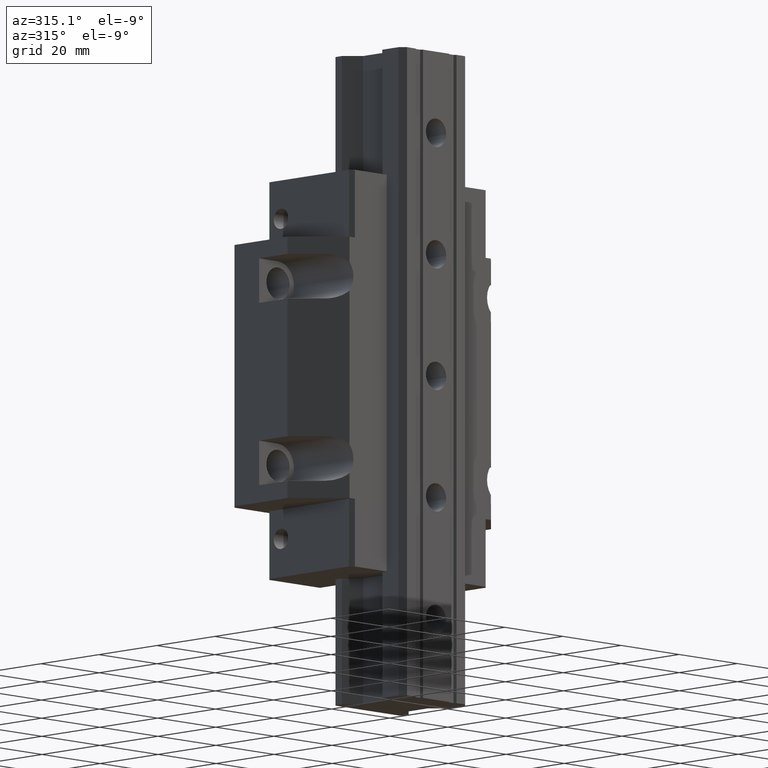
[diagram: clean part render]
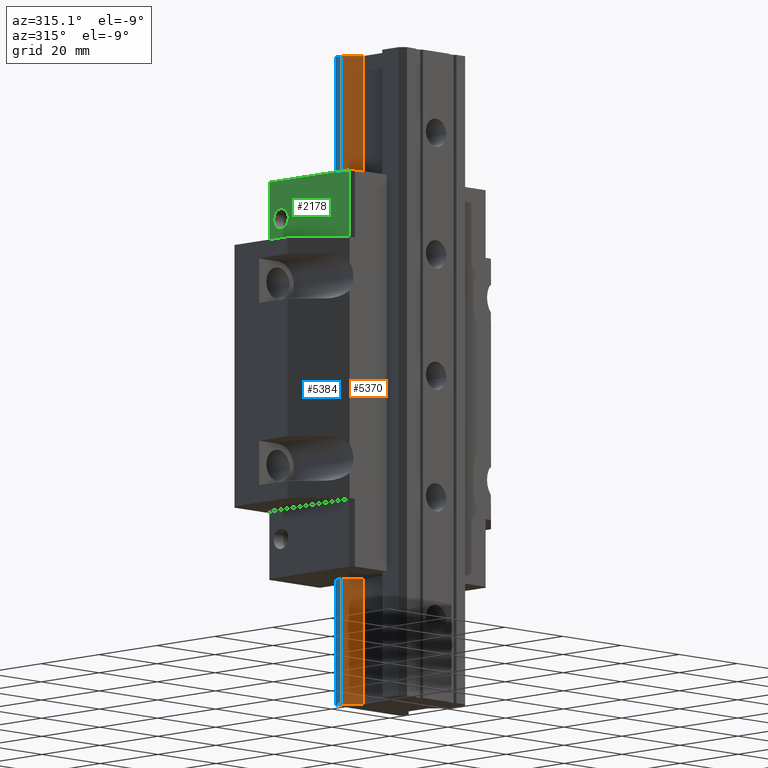
[diagram: same view with three faces highlighted in distinct colors, each labeled with its STEP entity id]
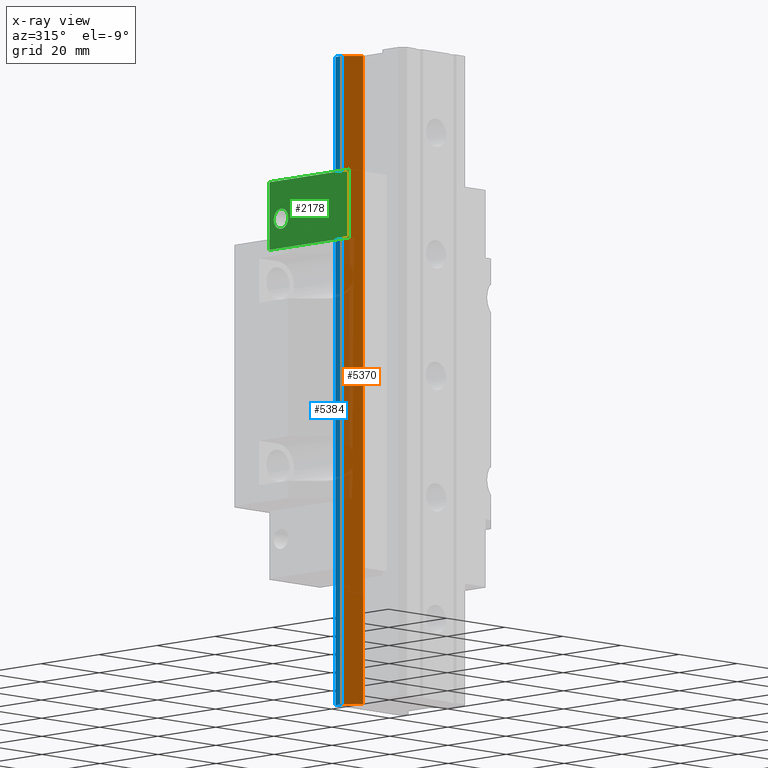
[diagram: x-ray of the same camera — body ghosted, the three highlighted faces saturated]
A machine part, auxiliary view with three faces highlighted in distinct colors.
The next image is the same camera in x-ray (body ghosted, the three faces saturated) — at least one of them is partly hidden behind the body in this view.
Their STEP definitions:

[orange] entity #5370 — the highlighted planar face has unit normal (-0.7071, -0.7071, 0).
#4306=DIRECTION('',(7.071067816988E-1,-7.071067806743E-1,0.E0));
#4307=VECTOR('',#4306,5.161868709330E0);
#4308=CARTESIAN_POINT('',(-1.149999237060E1,-1.498155065512E1,-8.E1));
#4309=LINE('',#4308,#4307);
#4398=DIRECTION('',(0.E0,0.E0,1.E0));
#4399=VECTOR('',#4398,1.6E2);
#4400=CARTESIAN_POINT('',(-1.149999237060E1,-1.498155065512E1,-8.E1));
#4401=LINE('',#4400,#4399);
#4648=DIRECTION('',(-7.071067816988E-1,7.071067806743E-1,0.E0));
#4649=VECTOR('',#4648,5.161868709330E0);
#4650=CARTESIAN_POINT('',(-7.849999999995E0,-1.863154302044E1,8.E1));
#4651=LINE('',#4650,#4649);
#4736=DIRECTION('',(0.E0,0.E0,1.E0));
#4737=VECTOR('',#4736,1.6E2);
#4738=CARTESIAN_POINT('',(-7.849999999995E0,-1.863154302044E1,-8.E1));
#4739=LINE('',#4738,#4737);
#5064=CARTESIAN_POINT('',(-1.149999237060E1,-1.498155065512E1,-8.E1));
#5065=CARTESIAN_POINT('',(-7.849999999995E0,-1.863154302044E1,-8.E1));
#5066=VERTEX_POINT('',#5064);
#5067=VERTEX_POINT('',#5065);
#5112=CARTESIAN_POINT('',(-1.149999237060E1,-1.498155065512E1,8.E1));
#5113=VERTEX_POINT('',#5112);
#5114=CARTESIAN_POINT('',(-7.849999999995E0,-1.863154302044E1,8.E1));
#5115=VERTEX_POINT('',#5114);
#5356=CARTESIAN_POINT('',(-1.149999237061E1,-1.498155065512E1,-8.E1));
#5357=DIRECTION('',(-7.071067806743E-1,-7.071067816988E-1,0.E0));
#5358=DIRECTION('',(7.071067816988E-1,-7.071067806743E-1,0.E0));
#5359=AXIS2_PLACEMENT_3D('',#5356,#5357,#5358);
#5360=PLANE('',#5359);
#5361=ORIENTED_EDGE('',*,*,#5305,.F.);
#5363=ORIENTED_EDGE('',*,*,#5362,.T.);
#5365=ORIENTED_EDGE('',*,*,#5364,.F.);
#5367=ORIENTED_EDGE('',*,*,#5366,.F.);
#5368=EDGE_LOOP('',(#5361,#5363,#5365,#5367));
#5369=FACE_OUTER_BOUND('',#5368,.F.);
#5370=ADVANCED_FACE('',(#5369),#5360,.T.);
#5305=EDGE_CURVE('',#5066,#5067,#4309,.T.);
#5362=EDGE_CURVE('',#5066,#5113,#4401,.T.);
#5364=EDGE_CURVE('',#5115,#5113,#4651,.T.);
#5366=EDGE_CURVE('',#5067,#5115,#4739,.T.);

[blue] entity #5384 — the highlighted planar face has unit normal (-1, 0, 0).
#4394=DIRECTION('',(-1.060970359801E-12,-1.E0,0.E0));
#4395=VECTOR('',#4394,2.181581172704E0);
#4396=CARTESIAN_POINT('',(-1.149999237060E1,-1.279996948242E1,-8.E1));
#4397=LINE('',#4396,#4395);
#4398=DIRECTION('',(0.E0,0.E0,1.E0));
#4399=VECTOR('',#4398,1.6E2);
#4400=CARTESIAN_POINT('',(-1.149999237060E1,-1.498155065512E1,-8.E1));
#4401=LINE('',#4400,#4399);
#4402=DIRECTION('',(0.E0,0.E0,1.E0));
#4403=VECTOR('',#4402,1.6E2);
#4404=CARTESIAN_POINT('',(-1.149999237060E1,-1.279996948242E1,-8.E1));
#4405=LINE('',#4404,#4403);
#4406=DIRECTION('',(-1.060970359801E-12,-1.E0,-1.302803204667E-14));
#4407=VECTOR('',#4406,2.181581172704E0);
#4408=CARTESIAN_POINT('',(-1.149999237060E1,-1.279996948242E1,8.E1));
#4409=LINE('',#4408,#4407);
#5064=CARTESIAN_POINT('',(-1.149999237060E1,-1.498155065512E1,-8.E1));
#5066=VERTEX_POINT('',#5064);
#5110=CARTESIAN_POINT('',(-1.149999237060E1,-1.279996948242E1,-8.E1));
#5111=VERTEX_POINT('',#5110);
#5112=CARTESIAN_POINT('',(-1.149999237060E1,-1.498155065512E1,8.E1));
#5113=VERTEX_POINT('',#5112);
#5116=CARTESIAN_POINT('',(-1.149999237060E1,-1.279996948242E1,8.E1));
#5117=VERTEX_POINT('',#5116);
#5371=CARTESIAN_POINT('',(-1.149999237060E1,-1.279996948242E1,-8.E1));
#5372=DIRECTION('',(-1.E0,1.045499571746E-12,0.E0));
#5373=DIRECTION('',(-1.045499571746E-12,-1.E0,0.E0));
#5374=AXIS2_PLACEMENT_3D('',#5371,#5372,#5373);
#5375=PLANE('',#5374);
#5376=ORIENTED_EDGE('',*,*,#5351,.F.);
#5378=ORIENTED_EDGE('',*,*,#5377,.T.);
#5380=ORIENTED_EDGE('',*,*,#5379,.T.);
#5381=ORIENTED_EDGE('',*,*,#5362,.F.);
#5382=EDGE_LOOP('',(#5376,#5378,#5380,#5381));
#5383=FACE_OUTER_BOUND('',#5382,.F.);
#5384=ADVANCED_FACE('',(#5383),#5375,.T.);
#5351=EDGE_CURVE('',#5111,#5066,#4397,.T.);
#5362=EDGE_CURVE('',#5066,#5113,#4401,.T.);
#5377=EDGE_CURVE('',#5111,#5117,#4405,.T.);
#5379=EDGE_CURVE('',#5117,#5113,#4409,.T.);

[green] entity #2178 — the highlighted planar face has unit normal (-1, -0, 0).
#132=DIRECTION('',(-1.723172502891E-14,0.E0,1.E0));
#133=VECTOR('',#132,1.67E1);
#134=CARTESIAN_POINT('',(-2.349997E1,-1.999999999998E0,3.225E1));
#135=LINE('',#134,#133);
#136=DIRECTION('',(2.067035668068E-14,-1.E0,0.E0));
#137=VECTOR('',#136,2.749997E1);
#138=CARTESIAN_POINT('',(-2.349997E1,-1.999999999998E0,4.895E1));
#139=LINE('',#138,#137);
#140=DIRECTION('',(-2.067035668068E-14,1.E0,0.E0));
#141=VECTOR('',#140,2.749997E1);
#142=CARTESIAN_POINT('',(-2.349997E1,-2.949997E1,3.225E1));
#143=LINE('',#142,#141);
#160=CARTESIAN_POINT('',(-2.349997E1,-6.000015258790E0,3.95E1));
#161=DIRECTION('',(1.E0,4.947966630438E-14,0.E0));
#162=DIRECTION('',(0.E0,1.695326545814E-9,-1.E0));
#163=AXIS2_PLACEMENT_3D('',#160,#161,#162);
#165=CARTESIAN_POINT('',(-2.349997E1,-6.000015258790E0,3.95E1));
#166=DIRECTION('',(1.E0,4.947966630438E-14,0.E0));
#167=DIRECTION('',(0.E0,5.826450433233E-14,1.E0));
#168=AXIS2_PLACEMENT_3D('',#165,#166,#167);
#884=DIRECTION('',(-1.701898768288E-14,3.659082351818E-14,1.E0));
#885=VECTOR('',#884,1.67E1);
#886=CARTESIAN_POINT('',(-2.349997E1,-2.949997E1,3.225E1));
#887=LINE('',#886,#885);
#1838=CARTESIAN_POINT('',(-2.349997E1,-2.949997E1,4.895E1));
#1839=VERTEX_POINT('',#1838);
#1840=CARTESIAN_POINT('',(-2.349997E1,-1.999999999998E0,4.895E1));
#1841=VERTEX_POINT('',#1840);
#1874=CARTESIAN_POINT('',(-2.349997E1,-1.999999999998E0,3.225E1));
#1875=VERTEX_POINT('',#1874);
#1876=CARTESIAN_POINT('',(-2.349997E1,-2.949997E1,3.225E1));
#1877=VERTEX_POINT('',#1876);
#1972=CARTESIAN_POINT('',(-2.349997E1,-6.000015254552E0,3.7E1));
#1973=CARTESIAN_POINT('',(-2.349997E1,-6.000015258790E0,4.2E1));
#1974=VERTEX_POINT('',#1972);
#1975=VERTEX_POINT('',#1973);
#2157=CARTESIAN_POINT('',(-2.349997E1,-2.949997E1,-3.225E1));
#2158=DIRECTION('',(-1.E0,-4.947966630438E-14,0.E0));
#2159=DIRECTION('',(-4.947966630438E-14,1.E0,0.E0));
#2160=AXIS2_PLACEMENT_3D('',#2157,#2158,#2159);
#2161=PLANE('',#2160);
#2163=ORIENTED_EDGE('',*,*,#2162,.T.);
#2165=ORIENTED_EDGE('',*,*,#2164,.T.);
#2167=ORIENTED_EDGE('',*,*,#2166,.F.);
#2169=ORIENTED_EDGE('',*,*,#2168,.T.);
#2170=EDGE_LOOP('',(#2163,#2165,#2167,#2169));
#2171=FACE_OUTER_BOUND('',#2170,.F.);
#2173=ORIENTED_EDGE('',*,*,#2172,.F.);
#2175=ORIENTED_EDGE('',*,*,#2174,.F.);
#2176=EDGE_LOOP('',(#2173,#2175));
#2177=FACE_BOUND('',#2176,.F.);
#2178=ADVANCED_FACE('',(#2171,#2177),#2161,.T.);
#164=CIRCLE('',#163,2.5E0);
#169=CIRCLE('',#168,2.5E0);
#2162=EDGE_CURVE('',#1875,#1841,#135,.T.);
#2164=EDGE_CURVE('',#1841,#1839,#139,.T.);
#2166=EDGE_CURVE('',#1877,#1839,#887,.T.);
#2168=EDGE_CURVE('',#1877,#1875,#143,.T.);
#2172=EDGE_CURVE('',#1974,#1975,#164,.T.);
#2174=EDGE_CURVE('',#1975,#1974,#169,.T.);